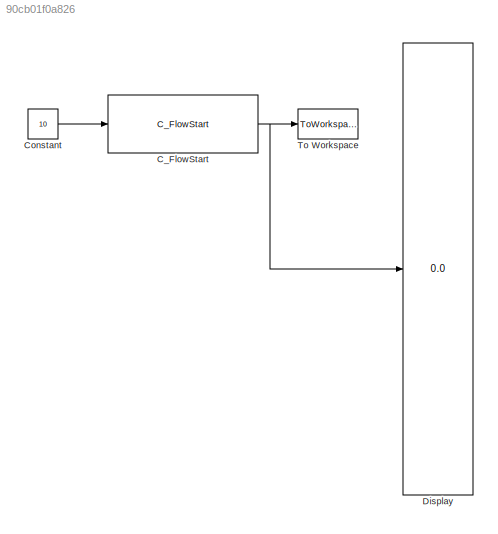
MODEL slx_90cb01f0a826
KIND model
CONFIG AbsTol = auto
CONFIG EnableMultiTasking = on
CONFIG FixedStep = auto
CONFIG MaxStep = auto
CONFIG MinStep = auto
CONFIG RelTol = 1e-3
CONFIG SampleTimeConstraint = Unconstrained
CONFIG Solver = ode45
CONFIG SolverName = ode45
CONFIG StartTime = 0.0
CONFIG StopTime = 10.0
BLOCK [Reference] C_FlowStart  REF=Lib_TurboC_FlowStart_TMATSC/C_FlowStart
  Ports = [1, 1]
  SourceBlock = Lib_TurboC_FlowStart_TMATSC/C_FlowStart
  SourceType = TMATS: Flow Start Library Block, cantera
BLOCK [Constant] Constant
  Value = 10
BLOCK [Display] Display
  Decimation = 1
  Ports = [1]
BLOCK [ToWorkspace] To Workspace
  MaxDataPoints = inf
  Ports = [1]
  SampleTime = -1
  SaveFormat = Timeseries
  VariableName = simout
NET C_FlowStart:1 -> Display:1, To Workspace:1
LINE Constant:1 -> C_FlowStart:1
note: NET lines group one-source signal fan-out (src -> all destinations, sorted); 1:1 wires keep LINE
